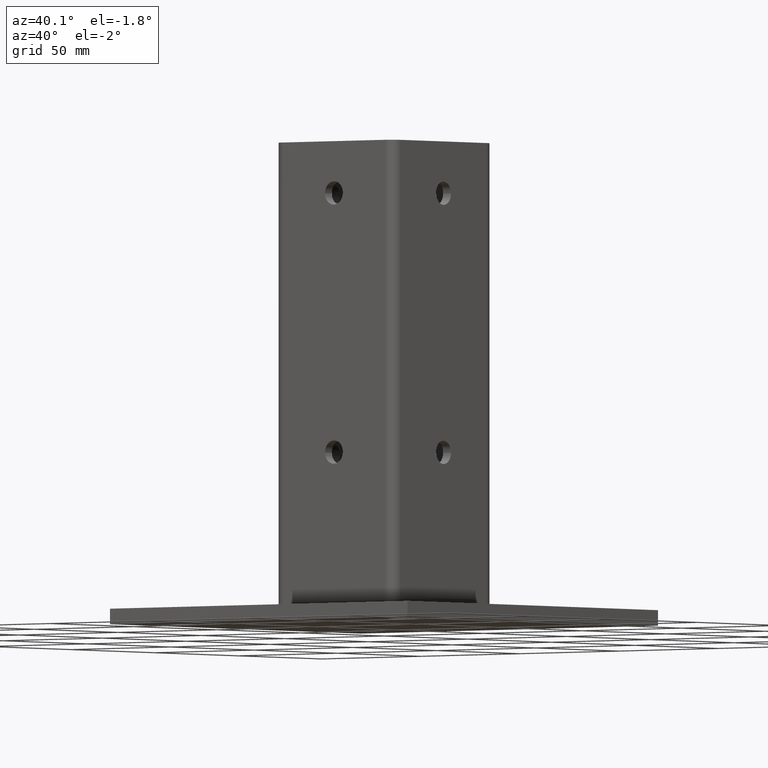
[diagram: clean part render]
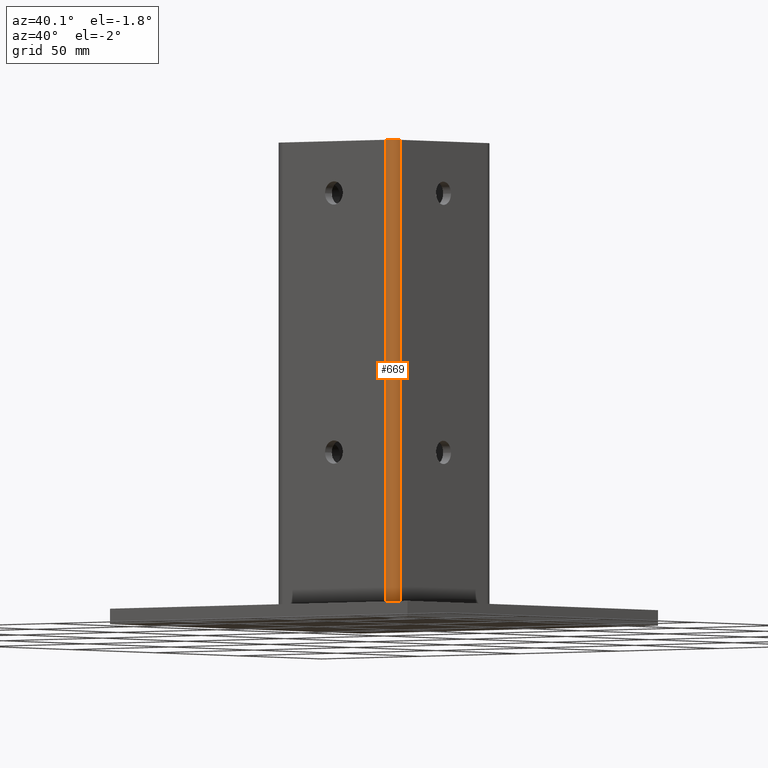
[diagram: same view with one face highlighted and labeled with its STEP entity id]
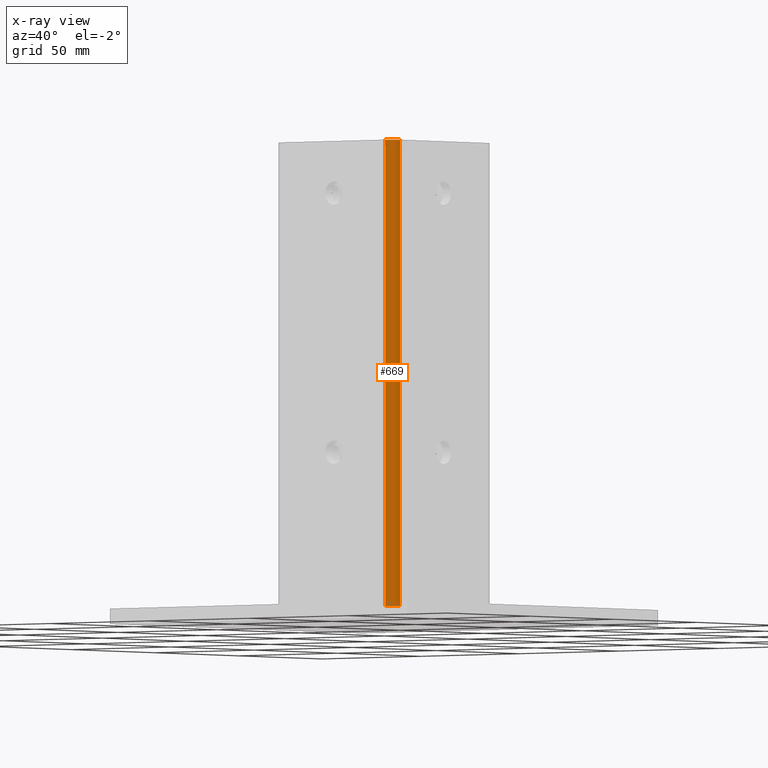
[diagram: x-ray of the same camera — body ghosted, the highlighted face saturated]
A machine part, auxiliary view. The second image highlights one B-rep face of the part: STEP entity #669.
The next image is the same camera in x-ray: the body ghosted, the highlighted face saturated — about 1% of this face is hidden behind the body in this view.
In plain terms, the highlighted cylindrical surface (edge-blend (fillet) strip) has radius 4 mm, axis along (0, 0, 1).
Its self-contained STEP definition (entity closure, byte-faithful):
#6 = AXIS2_PLACEMENT_3D ( 'NONE', #546, #547, #548 ) ;
#80 = CARTESIAN_POINT ( 'NONE',  ( 25.99999999923062400, -30.00000000000000000, 3.469446951953614200E-015 ) ) ;
#88 = VERTEX_POINT ( 'NONE', #1415 ) ;
#103 = CARTESIAN_POINT ( 'NONE',  ( 25.99999999923062400, -30.00000000000000000, 180.0000000000000000 ) ) ;
#104 = CARTESIAN_POINT ( 'NONE',  ( 30.00000000000000700, -26.00000000000000400, 0.0000000000000000000 ) ) ;
#373 = EDGE_CURVE ( 'NONE', #88, #559, #1088, .T. ) ;
#376 = EDGE_CURVE ( 'NONE', #558, #88, #1026, .T. ) ;
#377 = EDGE_CURVE ( 'NONE', #559, #424, #1029, .T. ) ;
#378 = EDGE_CURVE ( 'NONE', #424, #558, #1027, .T. ) ;
#424 = VERTEX_POINT ( 'NONE', #80 ) ;
#546 = CARTESIAN_POINT ( 'NONE',  ( 26.00000000000000400, -26.00000000000000400, 0.0000000000000000000 ) ) ;
#547 = DIRECTION ( 'NONE',  ( 0.0000000000000000000, 0.0000000000000000000, 1.000000000000000000 ) ) ;
#548 = DIRECTION ( 'NONE',  ( 1.000000000000000000, 0.0000000000000000000, 0.0000000000000000000 ) ) ;
#558 = VERTEX_POINT ( 'NONE', #103 ) ;
#559 = VERTEX_POINT ( 'NONE', #104 ) ;
#588 = CARTESIAN_POINT ( 'NONE',  ( 30.00000000000000000, -26.00000000000000400, 90.00000000000000000 ) ) ;
#589 = DIRECTION ( 'NONE',  ( 0.0000000000000000000, 0.0000000000000000000, -1.000000000000000000 ) ) ;
#594 = CARTESIAN_POINT ( 'NONE',  ( 26.00000000000000400, -26.00000000000000400, 180.0000000000000000 ) ) ;
#595 = DIRECTION ( 'NONE',  ( 0.0000000000000000000, 0.0000000000000000000, 1.000000000000000000 ) ) ;
#596 = DIRECTION ( 'NONE',  ( 1.000000000000000000, 0.0000000000000000000, 0.0000000000000000000 ) ) ;
#597 = CARTESIAN_POINT ( 'NONE',  ( 26.00000000000000400, -26.00000000000000400, 0.0000000000000000000 ) ) ;
#598 = DIRECTION ( 'NONE',  ( -0.0000000000000000000, -0.0000000000000000000, -1.000000000000000000 ) ) ;
#599 = DIRECTION ( 'NONE',  ( 1.000000000000000000, 0.0000000000000000000, 0.0000000000000000000 ) ) ;
#669 = ADVANCED_FACE ( 'NONE', ( #1184 ), #1237, .T. ) ;
#714 = ORIENTED_EDGE ( 'NONE', *, *, #376, .F. ) ;
#715 = ORIENTED_EDGE ( 'NONE', *, *, #378, .F. ) ;
#716 = ORIENTED_EDGE ( 'NONE', *, *, #377, .F. ) ;
#717 = ORIENTED_EDGE ( 'NONE', *, *, #373, .F. ) ;
#801 = EDGE_LOOP ( 'NONE', ( #714, #715, #716, #717 ) ) ;
#1026 = CIRCLE ( 'NONE', #1140, 3.999999999999996400 ) ;
#1027 = LINE ( 'NONE', #1300, #1031 ) ;
#1029 = CIRCLE ( 'NONE', #1139, 3.999999999999996400 ) ;
#1031 = VECTOR ( 'NONE', #1301, 1000.000000000000000 ) ;
#1086 = VECTOR ( 'NONE', #589, 1000.000000000000000 ) ;
#1088 = LINE ( 'NONE', #588, #1086 ) ;
#1139 = AXIS2_PLACEMENT_3D ( 'NONE', #597, #598, #599 ) ;
#1140 = AXIS2_PLACEMENT_3D ( 'NONE', #594, #595, #596 ) ;
#1184 = FACE_OUTER_BOUND ( 'NONE', #801, .T. ) ;
#1237 = CYLINDRICAL_SURFACE ( 'NONE', #6, 3.999999999999996400 ) ;
#1300 = CARTESIAN_POINT ( 'NONE',  ( 25.99999999846124500, -30.00000000000000400, 90.00000000000000000 ) ) ;
#1301 = DIRECTION ( 'NONE',  ( 0.0000000000000000000, 0.0000000000000000000, 1.000000000000000000 ) ) ;
#1415 = CARTESIAN_POINT ( 'NONE',  ( 30.00000000000000000, -26.00000000000000400, 180.0000000000000000 ) ) ;